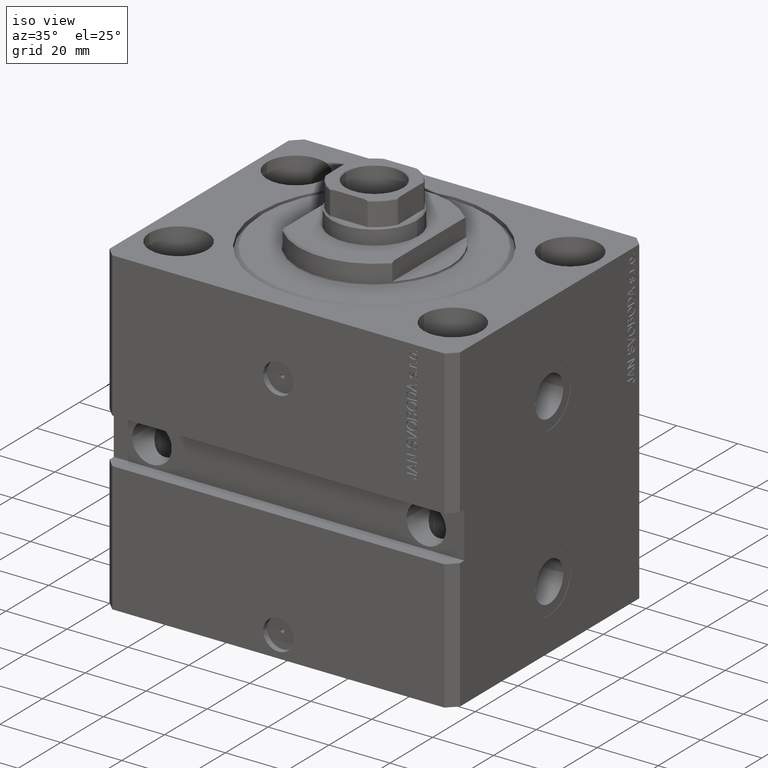
[diagram: clean part render]
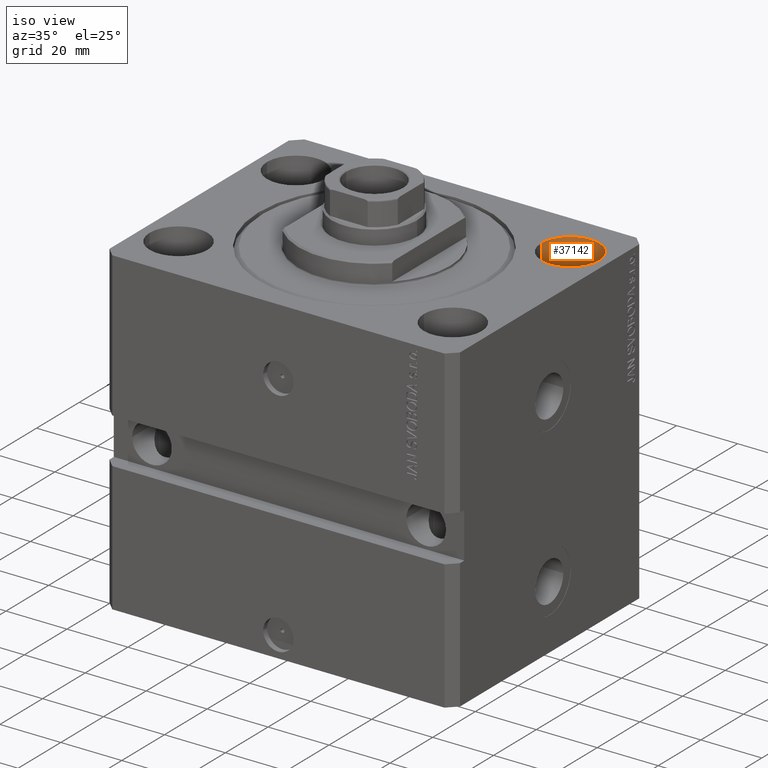
[diagram: same view with one face highlighted and labeled with its STEP entity id]
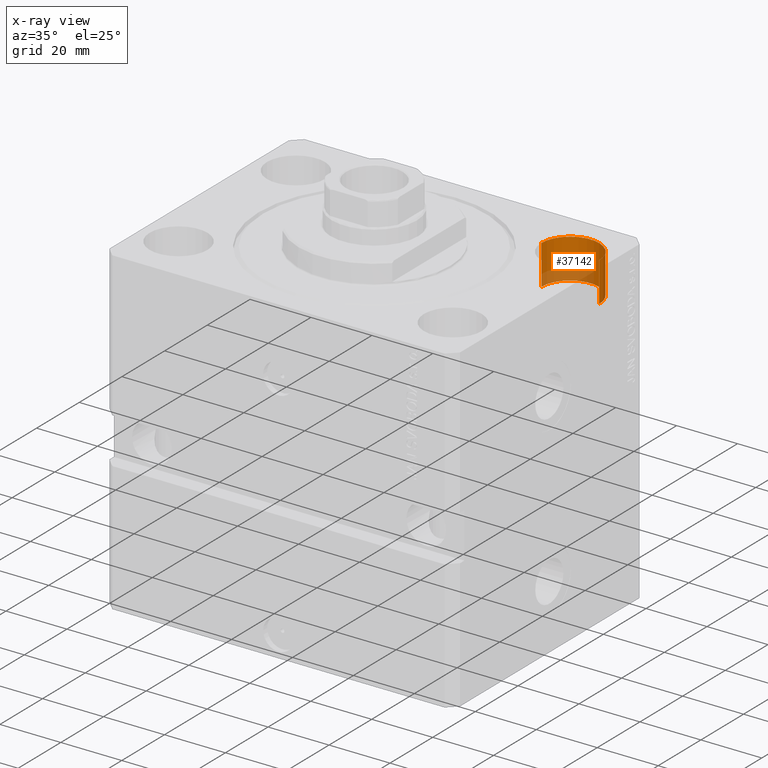
[diagram: x-ray of the same camera — body ghosted, the highlighted face saturated]
A machine part, iso view. The second image highlights one B-rep face of the part: STEP entity #37142.
The next image is the same camera in x-ray: the body ghosted, the highlighted face saturated — about 23% of this face is hidden behind the body in this view.
In plain terms, the highlighted cylindrical surface (edge-blend (fillet) strip) has radius 9.5 mm, axis along (0, 0, 1).
Its self-contained STEP definition (entity closure, byte-faithful):
#1421 = DIRECTION ( 'NONE',  ( 1.000000000000000000, 0.000000000000000000, 0.000000000000000000 ) ) ;
#3233 = CIRCLE ( 'NONE', #36246, 9.500000000000001776 ) ;
#4286 = CARTESIAN_POINT ( 'NONE',  ( 35.50000000000000000, 27.50000000000001776, -13.00000000000000000 ) ) ;
#4400 = DIRECTION ( 'NONE',  ( 1.000000000000000000, 0.000000000000000000, 0.000000000000000000 ) ) ;
#5913 = FACE_OUTER_BOUND ( 'NONE', #22728, .T. ) ;
#7745 = DIRECTION ( 'NONE',  ( -0.000000000000000000, -0.000000000000000000, 1.000000000000000000 ) ) ;
#9739 = VERTEX_POINT ( 'NONE', #39643 ) ;
#11179 = LINE ( 'NONE', #4286, #16500 ) ;
#11410 = VERTEX_POINT ( 'NONE', #29225 ) ;
#12667 = LINE ( 'NONE', #31136, #19339 ) ;
#12801 = CYLINDRICAL_SURFACE ( 'NONE', #26896, 9.500000000000001776 ) ;
#14722 = ORIENTED_EDGE ( 'NONE', *, *, #27472, .F. ) ;
#14993 = EDGE_CURVE ( 'NONE', #22844, #25556, #12667, .T. ) ;
#15717 = DIRECTION ( 'NONE',  ( 0.000000000000000000, 0.000000000000000000, 1.000000000000000000 ) ) ;
#16500 = VECTOR ( 'NONE', #7745, 1000.000000000000000 ) ;
#19339 = VECTOR ( 'NONE', #35055, 1000.000000000000000 ) ;
#20922 = DIRECTION ( 'NONE',  ( 1.000000000000000000, 0.000000000000000000, 0.000000000000000000 ) ) ;
#22728 = EDGE_LOOP ( 'NONE', ( #14722, #34373, #47255, #35585 ) ) ;
#22844 = VERTEX_POINT ( 'NONE', #39398 ) ;
#23232 = CARTESIAN_POINT ( 'NONE',  ( 54.50000000000000000, 27.50000000000001776, 0.000000000000000000 ) ) ;
#23357 = CARTESIAN_POINT ( 'NONE',  ( 45.00000000000000000, 27.50000000000001776, 0.000000000000000000 ) ) ;
#24451 = AXIS2_PLACEMENT_3D ( 'NONE', #23357, #15717, #4400 ) ;
#25229 = CIRCLE ( 'NONE', #24451, 9.500000000000001776 ) ;
#25556 = VERTEX_POINT ( 'NONE', #23232 ) ;
#26750 = EDGE_CURVE ( 'NONE', #25556, #9739, #25229, .T. ) ;
#26885 = EDGE_CURVE ( 'NONE', #22844, #11410, #3233, .T. ) ;
#26896 = AXIS2_PLACEMENT_3D ( 'NONE', #27807, #42822, #20922 ) ;
#27472 = EDGE_CURVE ( 'NONE', #11410, #9739, #11179, .T. ) ;
#27807 = CARTESIAN_POINT ( 'NONE',  ( 45.00000000000000000, 27.50000000000001776, -13.00000000000000000 ) ) ;
#28230 = CARTESIAN_POINT ( 'NONE',  ( 45.00000000000000000, 27.50000000000001776, -13.00000000000000000 ) ) ;
#29225 = CARTESIAN_POINT ( 'NONE',  ( 35.50000000000000000, 27.50000000000001776, -13.00000000000000000 ) ) ;
#31136 = CARTESIAN_POINT ( 'NONE',  ( 54.50000000000000000, 27.50000000000001776, -13.00000000000000000 ) ) ;
#34373 = ORIENTED_EDGE ( 'NONE', *, *, #26885, .F. ) ;
#35055 = DIRECTION ( 'NONE',  ( -0.000000000000000000, -0.000000000000000000, 1.000000000000000000 ) ) ;
#35585 = ORIENTED_EDGE ( 'NONE', *, *, #26750, .T. ) ;
#36246 = AXIS2_PLACEMENT_3D ( 'NONE', #28230, #46473, #1421 ) ;
#37142 = ADVANCED_FACE ( 'NONE', ( #5913 ), #12801, .F. ) ;
#39398 = CARTESIAN_POINT ( 'NONE',  ( 54.50000000000000000, 27.50000000000001776, -13.00000000000000000 ) ) ;
#39643 = CARTESIAN_POINT ( 'NONE',  ( 35.50000000000000000, 27.50000000000001776, 0.000000000000000000 ) ) ;
#42822 = DIRECTION ( 'NONE',  ( -0.000000000000000000, -0.000000000000000000, 1.000000000000000000 ) ) ;
#46473 = DIRECTION ( 'NONE',  ( 0.000000000000000000, 0.000000000000000000, 1.000000000000000000 ) ) ;
#47255 = ORIENTED_EDGE ( 'NONE', *, *, #14993, .T. ) ;